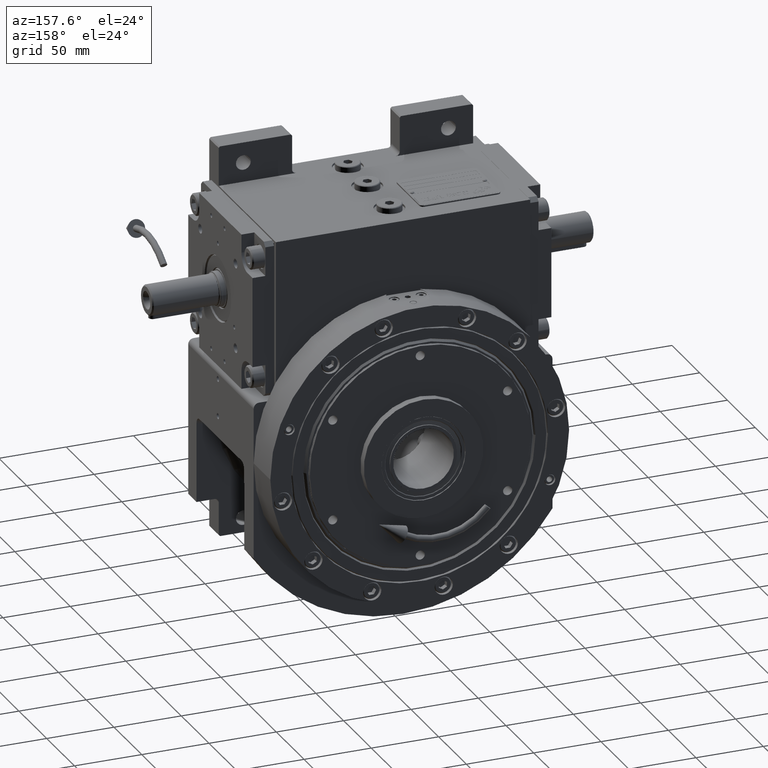
[diagram: clean part render]
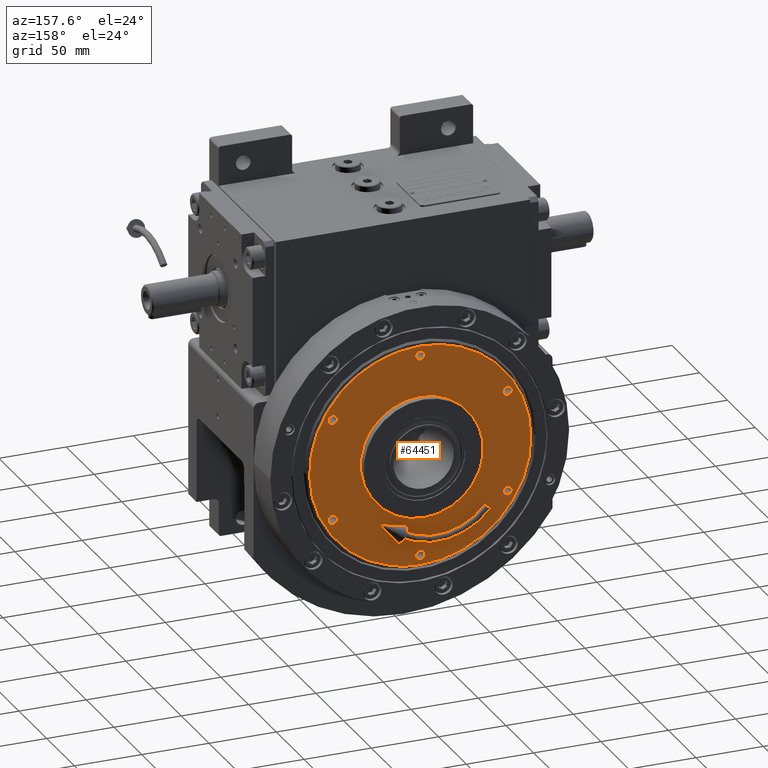
[diagram: same view with one face highlighted and labeled with its STEP entity id]
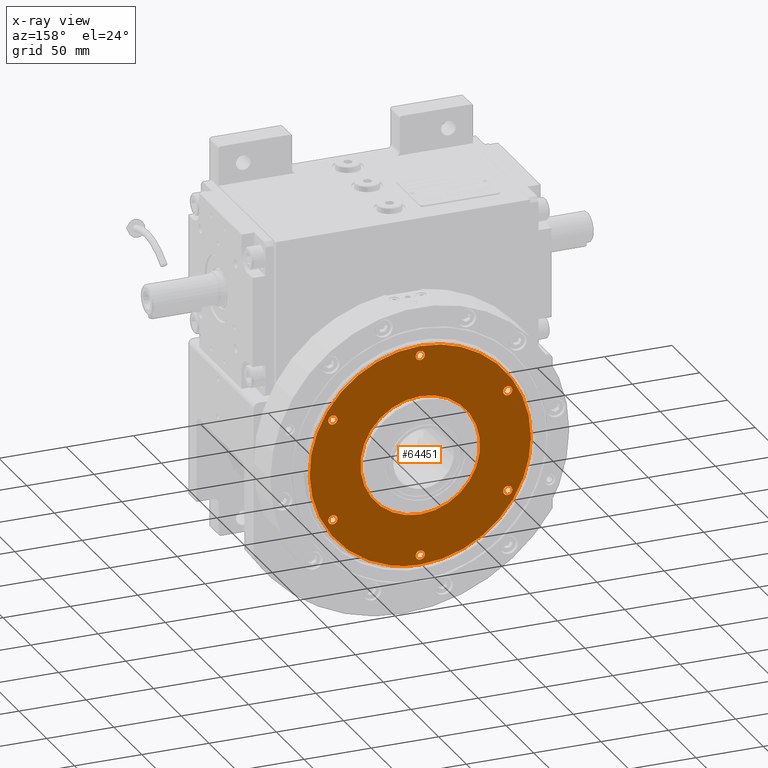
[diagram: x-ray of the same camera — body ghosted, the highlighted face saturated]
A machine part, auxiliary view. The second image highlights one B-rep face of the part: STEP entity #64451.
The next image is the same camera in x-ray: the body ghosted, the highlighted face saturated — about 0% of this face is hidden behind the body in this view.
In plain terms, the highlighted planar face has unit normal (-0, -1, 0).
Its self-contained STEP definition (entity closure, byte-faithful):
#206 = DIRECTION ( 'NONE',  ( 1.675637506513714923E-16, 1.000000000000000000, 1.391575833636289432E-15 ) ) ;
#396 = CIRCLE ( 'NONE', #46256, 3.400000000000000355 ) ;
#403 = CARTESIAN_POINT ( 'NONE',  ( -82.18603400874100373, 110.5000015448012078, -1.581321116836738903E-07 ) ) ;
#751 = CARTESIAN_POINT ( 'NONE',  ( -73.86467355760838416, 110.5000000000000284, 36.43724814399705281 ) ) ;
#859 = ORIENTED_EDGE ( 'NONE', *, *, #22621, .F. ) ;
#1396 = CARTESIAN_POINT ( 'NONE',  ( 79.57457908632083843, 110.4999999999999147, 20.63093614355476646 ) ) ;
#1589 = CARTESIAN_POINT ( 'NONE',  ( -80.85914935550094640, 110.5000000000001137, -14.71020086056635634 ) ) ;
#1900 = CARTESIAN_POINT ( 'NONE',  ( 71.59999999999999432, 110.5000000000000000, 1.022086504998418246E-13 ) ) ;
#1925 = CARTESIAN_POINT ( 'NONE',  ( -81.03742544091517175, 110.5000000000000711, -13.71909706410268015 ) ) ;
#2272 = DIRECTION ( 'NONE',  ( -4.718447854657029682E-16, 1.000000000000000000, -6.742972193678361957E-16 ) ) ;
#2445 = CARTESIAN_POINT ( 'NONE',  ( 80.33387830201935742, 110.4999999999999858, -17.35095847086815368 ) ) ;
#2494 = VERTEX_POINT ( 'NONE', #44020 ) ;
#2713 = AXIS2_PLACEMENT_3D ( 'NONE', #30598, #14823, #31601 ) ;
#2765 = CARTESIAN_POINT ( 'NONE',  ( 81.65593245021588586, 110.4999999999999147, 10.75709170780804591 ) ) ;
#2835 = AXIS2_PLACEMENT_3D ( 'NONE', #64018, #17167, #6525 ) ;
#3297 = VERTEX_POINT ( 'NONE', #57883 ) ;
#3607 = ORIENTED_EDGE ( 'NONE', *, *, #13050, .F. ) ;
#3730 = CARTESIAN_POINT ( 'NONE',  ( 37.49999999999976552, 110.5000000000004690, 64.95190528383290030 ) ) ;
#4087 = CARTESIAN_POINT ( 'NONE',  ( -75.00000000000000000, 110.5000000000000000, 2.232528398260600342E-13 ) ) ;
#5255 = EDGE_CURVE ( 'NONE', #3297, #50260, #44568, .T. ) ;
#5280 = ORIENTED_EDGE ( 'NONE', *, *, #39948, .F. ) ;
#5846 = CARTESIAN_POINT ( 'NONE',  ( -36.43677092628832526, 110.4999999999999432, 73.86494086435317286 ) ) ;
#5917 = CARTESIAN_POINT ( 'NONE',  ( -78.39999999999999147, 110.5000000000000000, 2.180706615231011380E-13 ) ) ;
#6190 = CARTESIAN_POINT ( 'NONE',  ( -81.41049721478047729, 110.5000000000000568, 11.40046640563026337 ) ) ;
#6514 = CARTESIAN_POINT ( 'NONE',  ( -77.86821339563778110, 110.5000000000000142, 26.42818210147186875 ) ) ;
#6525 = DIRECTION ( 'NONE',  ( 1.000000000000000000, 0.000000000000000000, -3.103063149571573393E-15 ) ) ;
#6851 = CARTESIAN_POINT ( 'NONE',  ( 80.11850087870730874, 110.4999999999999574, 18.33894396968175045 ) ) ;
#6937 = DIRECTION ( 'NONE',  ( -4.718447854657049403E-16, 1.000000000000000000, 1.415534356397163139E-15 ) ) ;
#7046 = CARTESIAN_POINT ( 'NONE',  ( -36.43753282681044681, 110.5000000000001563, -73.86470531561987229 ) ) ;
#7249 = CARTESIAN_POINT ( 'NONE',  ( 5.396965314102874167, 110.5000000000001279, -82.18599046470619385 ) ) ;
#7425 = CARTESIAN_POINT ( 'NONE',  ( -82.18603400874100373, 110.5000015448012078, -1.581321116836738903E-07 ) ) ;
#7727 = CARTESIAN_POINT ( 'NONE',  ( -82.18603400874100373, 110.5000015448012078, -1.581321116836738903E-07 ) ) ;
#7910 = CARTESIAN_POINT ( 'NONE',  ( 81.65587465362943931, 110.4999999999999716, -10.75668806138973821 ) ) ;
#8205 = EDGE_LOOP ( 'NONE', ( #5280, #24177 ) ) ;
#8263 = CARTESIAN_POINT ( 'NONE',  ( 54.29822300750018371, 110.5000000000000853, -61.93031885547884485 ) ) ;
#9641 = EDGE_CURVE ( 'NONE', #59673, #66961, #49555, .T. ) ;
#9743 = AXIS2_PLACEMENT_3D ( 'NONE', #45243, #50044, #50374 ) ;
#9756 = VERTEX_POINT ( 'NONE', #19935 ) ;
#10004 = EDGE_CURVE ( 'NONE', #19133, #23429, #48511, .T. ) ;
#10041 = CARTESIAN_POINT ( 'NONE',  ( 75.00000000000000000, 110.5000000000000000, 1.051233752824684617E-13 ) ) ;
#11002 = VERTEX_POINT ( 'NONE', #19016 ) ;
#11658 = CARTESIAN_POINT ( 'NONE',  ( -54.29909472632881773, 110.4999999999999289, 61.92944677904191053 ) ) ;
#11980 = CARTESIAN_POINT ( 'NONE',  ( 73.74790136345735903, 110.4999999999998863, 36.37523474268287060 ) ) ;
#12041 = AXIS2_PLACEMENT_3D ( 'NONE', #17342, #2272, #22843 ) ;
#12152 = ORIENTED_EDGE ( 'NONE', *, *, #17238, .F. ) ;
#12314 = CARTESIAN_POINT ( 'NONE',  ( -26.46591210633613045, 110.4999999999999147, 77.99484015378862978 ) ) ;
#12357 = CARTESIAN_POINT ( 'NONE',  ( 69.83423930135022317, 110.5000000000000426, -43.41667302301330267 ) ) ;
#12428 = VERTEX_POINT ( 'NONE', #47040 ) ;
#12858 = CARTESIAN_POINT ( 'NONE',  ( -10.74076764840350684, 110.5000000000001137, -81.65964476131441074 ) ) ;
#13043 = CARTESIAN_POINT ( 'NONE',  ( 21.32671897775462355, 110.5000000000000995, -79.55379426815653687 ) ) ;
#13050 = EDGE_CURVE ( 'NONE', #50260, #3297, #23521, .T. ) ;
#14581 = EDGE_CURVE ( 'NONE', #2494, #66902, #61903, .T. ) ;
#14823 = DIRECTION ( 'NONE',  ( -4.718447854657057292E-16, 1.000000000000000000, 3.505365932162158825E-15 ) ) ;
#15623 = DIRECTION ( 'NONE',  ( -1.000000000000000000, 4.081702296416015997E-15, 0.000000000000000000 ) ) ;
#15960 = DIRECTION ( 'NONE',  ( 1.000000000000000000, -1.248844797103662988E-15, -5.496118799065755261E-16 ) ) ;
#15979 = DIRECTION ( 'NONE',  ( 3.707818366064286826E-15, 1.000000000000000000, 3.505365932162154880E-15 ) ) ;
#16478 = CARTESIAN_POINT ( 'NONE',  ( -80.67297687466573564, 110.5000000000000568, 15.69867770626868442 ) ) ;
#16584 = B_SPLINE_CURVE_WITH_KNOTS ( 'NONE', 3,
 ( #23026, #34298, #7910, #23370, #29214, #2445, #59922, #38074, #48984, #43856, #17859, #18544, #65393, #12357, #44206, #17525, #8263, #60259, #50011, #32938, #22699, #13043, #33960, #7249, #28518 ),
 .UNSPECIFIED., .F., .F.,
 ( 4, 2, 2, 1, 1, 1, 2, 2, 2, 2, 2, 2, 2, 4 ),
 ( 0.000000000000000000, 0.06249999648971095445, 0.06640624627031788130, 0.07031249605092479427, 0.07812499561213860633, 0.09374999473456623045, 0.1249999929794214371, 0.1562499912242766298, 0.1874999894691318225, 0.2499999859588424300, 0.3124999824485529820, 0.3749999789382635340, 0.4374999754279740860, 0.4999999719176846380 ),
 .UNSPECIFIED. ) ;
#16832 = AXIS2_PLACEMENT_3D ( 'NONE', #43487, #28809, #48604 ) ;
#17167 = DIRECTION ( 'NONE',  ( -4.718447854657049403E-16, 1.000000000000000000, 1.415534356397163139E-15 ) ) ;
#17238 = EDGE_CURVE ( 'NONE', #66902, #2494, #54645, .T. ) ;
#17342 = CARTESIAN_POINT ( 'NONE',  ( -37.50000000000023448, 110.5000000000004690, 64.95190528383290030 ) ) ;
#17483 = CARTESIAN_POINT ( 'NONE',  ( -10.74154236511538230, 110.4999999999998863, 81.65956691445204285 ) ) ;
#17525 = CARTESIAN_POINT ( 'NONE',  ( 61.93063791654589778, 110.5000000000000853, -54.29769947772619076 ) ) ;
#17817 = CARTESIAN_POINT ( 'NONE',  ( 82.18222187922349065, 110.4999999999999716, 5.413844607824390032 ) ) ;
#17859 = CARTESIAN_POINT ( 'NONE',  ( 74.89780891093307957, 110.4999999999999858, -33.94318345663823067 ) ) ;
#18362 = CARTESIAN_POINT ( 'NONE',  ( -76.96293238175640283, 110.5000000000000995, -28.95791760141060323 ) ) ;
#18544 = CARTESIAN_POINT ( 'NONE',  ( 73.74813151264130795, 110.5000000000000142, -36.37479690083397088 ) ) ;
#19016 = CARTESIAN_POINT ( 'NONE',  ( 34.10000000000000142, 110.4999999999995310, -64.95190528383290030 ) ) ;
#19090 = CARTESIAN_POINT ( 'NONE',  ( -40.89999999999999858, 110.4999999999995310, -64.95190528383290030 ) ) ;
#19133 = VERTEX_POINT ( 'NONE', #25103 ) ;
#19267 = EDGE_CURVE ( 'NONE', #65372, #9756, #48778, .T. ) ;
#19890 = ORIENTED_EDGE ( 'NONE', *, *, #9641, .T. ) ;
#19935 = CARTESIAN_POINT ( 'NONE',  ( 82.18603400874251008, 110.5000015448018047, 1.581324351699644591E-07 ) ) ;
#20184 = CARTESIAN_POINT ( 'NONE',  ( 37.50000000000000000, 110.4999999999995310, -64.95190528383290030 ) ) ;
#20427 = FACE_OUTER_BOUND ( 'NONE', #45133, .T. ) ;
#21082 = FACE_BOUND ( 'NONE', #8205, .T. ) ;
#21116 = CARTESIAN_POINT ( 'NONE',  ( -37.50000000000023448, 110.5000000000004690, 64.95190528383290030 ) ) ;
#21641 = CARTESIAN_POINT ( 'NONE',  ( -61.92976105365574568, 110.4999999999999432, 54.29857669836285794 ) ) ;
#22467 = ORIENTED_EDGE ( 'NONE', *, *, #41734, .F. ) ;
#22621 = EDGE_CURVE ( 'NONE', #50293, #12428, #396, .T. ) ;
#22682 = VERTEX_POINT ( 'NONE', #5917 ) ;
#22699 = CARTESIAN_POINT ( 'NONE',  ( 26.46527515611209225, 110.5000000000001137, -77.99510436064849728 ) ) ;
#22843 = DIRECTION ( 'NONE',  ( 1.000000000000000000, 0.000000000000000000, 0.000000000000000000 ) ) ;
#23026 = CARTESIAN_POINT ( 'NONE',  ( 82.18603400874251008, 110.5000015448018047, 1.581324351699644591E-07 ) ) ;
#23234 = CARTESIAN_POINT ( 'NONE',  ( 44.45000000000000284, 110.5000000000000000, 1.284335846412389785E-13 ) ) ;
#23370 = CARTESIAN_POINT ( 'NONE',  ( 80.54158547785665689, 110.4999999999999858, -16.35931090249719588 ) ) ;
#23429 = VERTEX_POINT ( 'NONE', #19090 ) ;
#23521 = CIRCLE ( 'NONE', #2713, 3.400000000000000355 ) ;
#24177 = ORIENTED_EDGE ( 'NONE', *, *, #43948, .F. ) ;
#25103 = CARTESIAN_POINT ( 'NONE',  ( -34.10000000000000142, 110.4999999999995310, -64.95190528383290030 ) ) ;
#25318 = EDGE_CURVE ( 'NONE', #40013, #22682, #36715, .T. ) ;
#25375 = ORIENTED_EDGE ( 'NONE', *, *, #25318, .F. ) ;
#25863 = DIRECTION ( 'NONE',  ( -4.718447854657049403E-16, 1.000000000000000000, 1.415534356397163139E-15 ) ) ;
#26448 = CARTESIAN_POINT ( 'NONE',  ( 80.33384769217840926, 110.4999999999999289, 17.35112966435331572 ) ) ;
#26747 = AXIS2_PLACEMENT_3D ( 'NONE', #4087, #52271, #51277 ) ;
#26795 = CARTESIAN_POINT ( 'NONE',  ( -80.85911346599479543, 110.5000000000000711, 14.71011054370733362 ) ) ;
#26933 = PLANE ( 'NONE',  #51782 ) ;
#27133 = CARTESIAN_POINT ( 'NONE',  ( 36.43673274471090195, 110.4999999999998863, 73.86503631034798900 ) ) ;
#27453 = CARTESIAN_POINT ( 'NONE',  ( 76.96221393906925812, 110.4999999999999147, 28.95965176232091309 ) ) ;
#27637 = CARTESIAN_POINT ( 'NONE',  ( -80.67302273752039810, 110.5000000000001137, -15.69862675829484999 ) ) ;
#27748 = CARTESIAN_POINT ( 'NONE',  ( -1.048313195117545505E-10, 110.4999999999999858, -82.18603692326389876 ) ) ;
#27874 = DIRECTION ( 'NONE',  ( 1.000000000000000000, -9.366335978277473892E-16, -4.696858128919411138E-16 ) ) ;
#27883 = DIRECTION ( 'NONE',  ( 1.000000000000000000, 0.000000000000000000, 6.847565815024966582E-16 ) ) ;
#27993 = CARTESIAN_POINT ( 'NONE',  ( -54.29850716401772814, 110.5000000000001137, -61.92993699073135616 ) ) ;
#28067 = AXIS2_PLACEMENT_3D ( 'NONE', #21116, #15979, #15623 ) ;
#28172 = ORIENTED_EDGE ( 'NONE', *, *, #14581, .F. ) ;
#28329 = CARTESIAN_POINT ( 'NONE',  ( -80.08026981023142810, 110.5000000000000995, -18.67866566709005127 ) ) ;
#28518 = CARTESIAN_POINT ( 'NONE',  ( -1.048313195117545505E-10, 110.4999999999999858, -82.18603692326389876 ) ) ;
#28809 = DIRECTION ( 'NONE',  ( -4.718447854657029682E-16, 1.000000000000000000, -6.742972193678164742E-16 ) ) ;
#29103 = AXIS2_PLACEMENT_3D ( 'NONE', #38517, #38189, #53222 ) ;
#29214 = CARTESIAN_POINT ( 'NONE',  ( 80.47346700800814290, 110.4999999999999574, -16.69126919466632586 ) ) ;
#30434 = VERTEX_POINT ( 'NONE', #27748 ) ;
#30598 = CARTESIAN_POINT ( 'NONE',  ( 37.49999999999976552, 110.5000000000004690, 64.95190528383290030 ) ) ;
#30787 = CARTESIAN_POINT ( 'NONE',  ( -44.45000000000000284, 110.5000000000000000, 1.825849897817965684E-13 ) ) ;
#31601 = DIRECTION ( 'NONE',  ( 1.000000000000000000, 0.000000000000000000, 0.000000000000000000 ) ) ;
#32002 = EDGE_LOOP ( 'NONE', ( #859, #61689 ) ) ;
#32036 = FACE_BOUND ( 'NONE', #34291, .T. ) ;
#32201 = AXIS2_PLACEMENT_3D ( 'NONE', #20184, #41044, #62540 ) ;
#32249 = CARTESIAN_POINT ( 'NONE',  ( -5.396175763947936410, 110.4999999999999005, 82.18599094346413381 ) ) ;
#32575 = CARTESIAN_POINT ( 'NONE',  ( 71.21633143618711870, 110.4999999999999005, 41.11144999242252140 ) ) ;
#32899 = CARTESIAN_POINT ( 'NONE',  ( 78.32095192439938103, 110.4999999999999147, 25.16328900372736044 ) ) ;
#32938 = CARTESIAN_POINT ( 'NONE',  ( 36.43741795798399608, 110.5000000000001279, -73.86467248177748957 ) ) ;
#33240 = CARTESIAN_POINT ( 'NONE',  ( 65.33793898011033718, 110.4999999999998579, 50.14568632257594771 ) ) ;
#33602 = ORIENTED_EDGE ( 'NONE', *, *, #39881, .F. ) ;
#33960 = CARTESIAN_POINT ( 'NONE',  ( 10.74078281828396619, 110.5000000000001421, -81.65971843768942051 ) ) ;
#34110 = CARTESIAN_POINT ( 'NONE',  ( -41.17304319471158180, 110.5000000000001279, -71.33342587732602169 ) ) ;
#34291 = EDGE_LOOP ( 'NONE', ( #28172, #12152 ) ) ;
#34298 = CARTESIAN_POINT ( 'NONE',  ( 82.18217394222037342, 110.4999999999999858, -5.413439777049608992 ) ) ;
#34695 = CARTESIAN_POINT ( 'NONE',  ( 40.89999999999999858, 110.4999999999995310, -64.95190528383290030 ) ) ;
#34761 = EDGE_CURVE ( 'NONE', #30434, #65372, #62659, .T. ) ;
#35230 = DIRECTION ( 'NONE',  ( -4.718447854657029682E-16, 1.000000000000000000, -6.742972193678263349E-16 ) ) ;
#35468 = CIRCLE ( 'NONE', #32201, 3.400000000000000355 ) ;
#35578 = DIRECTION ( 'NONE',  ( -1.000000000000000000, 0.000000000000000000, 0.000000000000000000 ) ) ;
#36239 = CARTESIAN_POINT ( 'NONE',  ( -34.10000000000023590, 110.5000000000004690, 64.95190528383290030 ) ) ;
#36715 = CIRCLE ( 'NONE', #2835, 3.400000000000000355 ) ;
#36838 = FACE_BOUND ( 'NONE', #62518, .T. ) ;
#37034 = CARTESIAN_POINT ( 'NONE',  ( -65.33761603904906679, 110.4999999999999289, 50.14632643991285477 ) ) ;
#37085 = CIRCLE ( 'NONE', #9743, 3.400000000000000355 ) ;
#37160 = CARTESIAN_POINT ( 'NONE',  ( -3.183182310706833734E-14, 110.5000000000000000, 1.564165463818864609E-13 ) ) ;
#37697 = CARTESIAN_POINT ( 'NONE',  ( 21.32597268393185530, 110.4999999999998863, 79.55402177641896344 ) ) ;
#38074 = CARTESIAN_POINT ( 'NONE',  ( 79.57472203535756705, 110.5000000000000142, -20.63044246711247709 ) ) ;
#38189 = DIRECTION ( 'NONE',  ( 3.707818366064296292E-15, 1.000000000000000000, 3.505365932162139892E-15 ) ) ;
#38360 = CARTESIAN_POINT ( 'NONE',  ( 5.396190313849504427, 110.4999999999998721, 82.18606838660637948 ) ) ;
#38517 = CARTESIAN_POINT ( 'NONE',  ( -37.50000000000000000, 110.4999999999995310, -64.95190528383290030 ) ) ;
#38543 = CARTESIAN_POINT ( 'NONE',  ( -82.18412582237166930, 110.5000000000000995, -2.706922455996579213 ) ) ;
#38905 = CARTESIAN_POINT ( 'NONE',  ( -50.14754556814371966, 110.5000000000001137, -65.33666926840503208 ) ) ;
#39221 = CARTESIAN_POINT ( 'NONE',  ( -71.33364469616630288, 110.5000000000001421, -41.17277949763063560 ) ) ;
#39372 = CARTESIAN_POINT ( 'NONE',  ( 80.54161329299182626, 110.4999999999999005, 16.35928189945987654 ) ) ;
#39881 = EDGE_CURVE ( 'NONE', #22682, #40013, #55101, .T. ) ;
#39948 = EDGE_CURVE ( 'NONE', #11002, #51962, #35468, .T. ) ;
#40013 = VERTEX_POINT ( 'NONE', #53287 ) ;
#40771 = ORIENTED_EDGE ( 'NONE', *, *, #5255, .F. ) ;
#41044 = DIRECTION ( 'NONE',  ( -4.718447854657029682E-16, 1.000000000000000000, -6.742972193678314625E-16 ) ) ;
#41210 = DIRECTION ( 'NONE',  ( -1.000000000000000000, 0.000000000000000000, -7.500638182451421422E-16 ) ) ;
#41600 = DIRECTION ( 'NONE',  ( -6.555357385390620221E-16, -1.000000000000000000, -1.415534356397161758E-15 ) ) ;
#41734 = EDGE_CURVE ( 'NONE', #59673, #66961, #55428, .T. ) ;
#41932 = FACE_BOUND ( 'NONE', #47919, .T. ) ;
#42062 = ORIENTED_EDGE ( 'NONE', *, *, #19267, .T. ) ;
#42151 = CARTESIAN_POINT ( 'NONE',  ( -79.42723460417914794, 110.4999999999999858, 21.28768615169962075 ) ) ;
#42477 = CARTESIAN_POINT ( 'NONE',  ( -50.14684274527402152, 110.4999999999999574, 65.33704237330361764 ) ) ;
#42809 = CARTESIAN_POINT ( 'NONE',  ( 10.74154536275719529, 110.4999999999998721, 81.65949047945831296 ) ) ;
#43155 = CARTESIAN_POINT ( 'NONE',  ( -81.03738559922311424, 110.5000000000000568, 13.71894467123678396 ) ) ;
#43352 = CARTESIAN_POINT ( 'NONE',  ( -21.32673791258708462, 110.5000000000001421, -79.55386997823390516 ) ) ;
#43487 = CARTESIAN_POINT ( 'NONE',  ( -37.50000000000000000, 110.4999999999995310, -64.95190528383290030 ) ) ;
#43529 = EDGE_LOOP ( 'NONE', ( #33602, #25375 ) ) ;
#43856 = CARTESIAN_POINT ( 'NONE',  ( 76.96232867576267722, 110.5000000000000142, -28.95928036596258082 ) ) ;
#43948 = EDGE_CURVE ( 'NONE', #51962, #11002, #37085, .T. ) ;
#44020 = CARTESIAN_POINT ( 'NONE',  ( -40.90000000000023306, 110.5000000000004690, 64.95190528383290030 ) ) ;
#44206 = CARTESIAN_POINT ( 'NONE',  ( 65.33763228115988397, 110.5000000000000711, -50.14630245138518205 ) ) ;
#44372 = CARTESIAN_POINT ( 'NONE',  ( -73.86436510405076206, 110.5000000000001137, -36.43783581387050674 ) ) ;
#44568 = CIRCLE ( 'NONE', #56562, 3.400000000000000355 ) ;
#44690 = CARTESIAN_POINT ( 'NONE',  ( -65.33708734634379312, 110.5000000000001279, -50.14696052069763255 ) ) ;
#45133 = EDGE_LOOP ( 'NONE', ( #42062, #59319, #49530 ) ) ;
#45243 = CARTESIAN_POINT ( 'NONE',  ( 37.50000000000000000, 110.4999999999995310, -64.95190528383290030 ) ) ;
#45833 = EDGE_LOOP ( 'NONE', ( #22467, #19890 ) ) ;
#46256 = AXIS2_PLACEMENT_3D ( 'NONE', #10041, #25863, #41210 ) ;
#47040 = CARTESIAN_POINT ( 'NONE',  ( 78.39999999999999147, 110.5000000000000000, 9.745954043795032118E-14 ) ) ;
#47268 = CARTESIAN_POINT ( 'NONE',  ( 69.83408181518966273, 110.4999999999998863, 43.41695845024579370 ) ) ;
#47622 = CARTESIAN_POINT ( 'NONE',  ( -71.33312151958747904, 110.4999999999999574, 41.17344376063495304 ) ) ;
#47919 = EDGE_LOOP ( 'NONE', ( #61101, #59250 ) ) ;
#47936 = CARTESIAN_POINT ( 'NONE',  ( 41.17346744512529000, 110.4999999999998721, 71.33314274904859076 ) ) ;
#48266 = CARTESIAN_POINT ( 'NONE',  ( -81.98529366466031831, 110.5000000000000426, 6.740478288382846905 ) ) ;
#48511 = CIRCLE ( 'NONE', #16832, 3.400000000000000355 ) ;
#48604 = DIRECTION ( 'NONE',  ( 1.000000000000000000, 0.000000000000000000, 0.000000000000000000 ) ) ;
#48609 = CARTESIAN_POINT ( 'NONE',  ( -80.73618378714652977, 110.5000000000000284, 15.37033942092496908 ) ) ;
#48778 = B_SPLINE_CURVE_WITH_KNOTS ( 'NONE', 3,
 ( #403, #64328, #48266, #6190, #43155, #26795, #48609, #16478, #53721, #42151, #6514, #58854, #751, #47622, #37034, #21641, #11658, #42477, #52710, #5846, #12314, #58181, #17483, #32249, #38360, #42809, #37697, #53066, #27133, #47936, #59192, #63646, #58536, #33240, #47268, #32575, #11980, #53388, #27453, #32899, #1396, #6851, #26448, #65683, #39372, #2765, #17817, #66020 ),
 .UNSPECIFIED., .F., .F.,
 ( 4, 1, 1, 1, 2, 2, 2, 2, 2, 2, 2, 2, 2, 2, 2, 2, 2, 2, 2, 2, 2, 1, 1, 1, 2, 2, 4 ),
 ( 0.000000000000000000, 0.03125000000000000000, 0.04687500000000000000, 0.05468750000000000000, 0.05859374999999998612, 0.06249999999999997224, 0.09375000000000000000, 0.1250000000000000278, 0.1875000000000000000, 0.2499999999999999722, 0.3124999999999999445, 0.3749999999999998890, 0.4374999999999998890, 0.4999999999999998890, 0.5624999999999998890, 0.6249999999999998890, 0.6874999999999998890, 0.7499999999999998890, 0.8124999999999998890, 0.8437499999999998890, 0.8749999999999998890, 0.9062499999999998890, 0.9218749999999998890, 0.9296874999999998890, 0.9335937499999998890, 0.9374999999999998890, 1.000000000000000000 ),
 .UNSPECIFIED. ) ;
#48802 = CARTESIAN_POINT ( 'NONE',  ( -80.73621674438211926, 110.5000000000000995, -15.37038518178269264 ) ) ;
#48984 = CARTESIAN_POINT ( 'NONE',  ( 78.32115647600107877, 110.4999999999999574, -25.16263082416805474 ) ) ;
#49135 = CARTESIAN_POINT ( 'NONE',  ( -81.41054315470107383, 110.5000000000000853, -11.40073033654686796 ) ) ;
#49471 = CARTESIAN_POINT ( 'NONE',  ( -26.46516568415015769, 110.5000000000001279, -77.99506614383157910 ) ) ;
#49530 = ORIENTED_EDGE ( 'NONE', *, *, #34761, .T. ) ;
#49555 = CIRCLE ( 'NONE', #65945, 44.45000000000000284 ) ;
#50011 = CARTESIAN_POINT ( 'NONE',  ( 41.17286106389222056, 110.5000000000000853, -71.33364164011435093 ) ) ;
#50044 = DIRECTION ( 'NONE',  ( 3.707818366064296292E-15, 1.000000000000000000, 3.505365932162149358E-15 ) ) ;
#50260 = VERTEX_POINT ( 'NONE', #57675 ) ;
#50293 = VERTEX_POINT ( 'NONE', #1900 ) ;
#50374 = DIRECTION ( 'NONE',  ( 1.000000000000000000, -4.081702296416015997E-15, 0.000000000000000000 ) ) ;
#50493 = AXIS2_PLACEMENT_3D ( 'NONE', #58261, #6937, #27883 ) ;
#51277 = DIRECTION ( 'NONE',  ( -1.000000000000000000, 0.000000000000000000, -2.317437500068900789E-15 ) ) ;
#51782 = AXIS2_PLACEMENT_3D ( 'NONE', #37160, #41600, #57980 ) ;
#51962 = VERTEX_POINT ( 'NONE', #34695 ) ;
#52271 = DIRECTION ( 'NONE',  ( -4.718447854657049403E-16, 1.000000000000000000, 1.415534356397163139E-15 ) ) ;
#52525 = CARTESIAN_POINT ( 'NONE',  ( -3.437528039995291315E-14, 110.5000000000000000, 1.528638327030859347E-13 ) ) ;
#52710 = CARTESIAN_POINT ( 'NONE',  ( -41.17372798125234823, 110.4999999999999147, 71.33306199257278024 ) ) ;
#53066 = CARTESIAN_POINT ( 'NONE',  ( 26.46597584794663405, 110.4999999999998721, 77.99473097346027828 ) ) ;
#53222 = DIRECTION ( 'NONE',  ( -1.000000000000000000, 4.081702296416015997E-15, 0.000000000000000000 ) ) ;
#53287 = CARTESIAN_POINT ( 'NONE',  ( -71.59999999999999432, 110.5000000000000000, 2.133215514612094579E-13 ) ) ;
#53388 = CARTESIAN_POINT ( 'NONE',  ( 74.89794069821215317, 110.4999999999999005, 33.94279222128618301 ) ) ;
#53573 = CARTESIAN_POINT ( 'NONE',  ( -77.86803878220749198, 110.5000000000000995, -26.42874468702206769 ) ) ;
#53721 = CARTESIAN_POINT ( 'NONE',  ( -80.08037051196103562, 110.5000000000000000, 18.67829002333721533 ) ) ;
#53798 = CARTESIAN_POINT ( 'NONE',  ( -2.371713936355100647E-14, 110.5000000000000000, 1.493111190242854338E-13 ) ) ;
#53913 = CARTESIAN_POINT ( 'NONE',  ( -5.396965920549732232, 110.5000000000001137, -82.18606886526306710 ) ) ;
#54317 = EDGE_CURVE ( 'NONE', #23429, #19133, #63982, .T. ) ;
#54645 = CIRCLE ( 'NONE', #12041, 3.400000000000000355 ) ;
#54865 = CIRCLE ( 'NONE', #50493, 3.400000000000000355 ) ;
#55101 = CIRCLE ( 'NONE', #26747, 3.400000000000000355 ) ;
#55428 = CIRCLE ( 'NONE', #61984, 44.45000000000000284 ) ;
#56562 = AXIS2_PLACEMENT_3D ( 'NONE', #3730, #35230, #35578 ) ;
#57675 = CARTESIAN_POINT ( 'NONE',  ( 40.89999999999976410, 110.5000000000004690, 64.95190528383290030 ) ) ;
#57883 = CARTESIAN_POINT ( 'NONE',  ( 34.09999999999975984, 110.5000000000004690, 64.95190528383290030 ) ) ;
#57980 = DIRECTION ( 'NONE',  ( -1.000000000000000000, 6.555357385390609374E-16, 7.520026268359458754E-16 ) ) ;
#58181 = CARTESIAN_POINT ( 'NONE',  ( -21.32594694526337165, 110.4999999999999005, 79.55394827524166601 ) ) ;
#58261 = CARTESIAN_POINT ( 'NONE',  ( 75.00000000000000000, 110.5000000000000000, 9.513136806084206547E-14 ) ) ;
#58536 = CARTESIAN_POINT ( 'NONE',  ( 61.93011393209870619, 110.4999999999998579, 54.29833759267269500 ) ) ;
#58854 = CARTESIAN_POINT ( 'NONE',  ( -76.96276536764068510, 110.4999999999999858, 28.95822631422436544 ) ) ;
#59192 = CARTESIAN_POINT ( 'NONE',  ( 50.14712887847355915, 110.4999999999998863, 65.33694734459886888 ) ) ;
#59250 = ORIENTED_EDGE ( 'NONE', *, *, #10004, .F. ) ;
#59319 = ORIENTED_EDGE ( 'NONE', *, *, #63308, .T. ) ;
#59673 = VERTEX_POINT ( 'NONE', #23234 ) ;
#59922 = CARTESIAN_POINT ( 'NONE',  ( 80.11857142980537105, 110.5000000000000000, -18.33865731567752277 ) ) ;
#59956 = DIRECTION ( 'NONE',  ( 1.521405174071660091E-16, -1.000000000000000000, -1.439492879158034479E-15 ) ) ;
#60071 = CARTESIAN_POINT ( 'NONE',  ( -81.98533930688324745, 110.5000000000000568, -6.740832071539178294 ) ) ;
#60259 = CARTESIAN_POINT ( 'NONE',  ( 50.14771722367682116, 110.5000000000000711, -65.33645767331695708 ) ) ;
#60590 = EDGE_CURVE ( 'NONE', #12428, #50293, #54865, .T. ) ;
#61101 = ORIENTED_EDGE ( 'NONE', *, *, #54317, .F. ) ;
#61689 = ORIENTED_EDGE ( 'NONE', *, *, #60590, .F. ) ;
#61903 = CIRCLE ( 'NONE', #28067, 3.400000000000000355 ) ;
#61984 = AXIS2_PLACEMENT_3D ( 'NONE', #52525, #206, #15960 ) ;
#62123 = FACE_BOUND ( 'NONE', #32002, .T. ) ;
#62518 = EDGE_LOOP ( 'NONE', ( #40771, #3607 ) ) ;
#62540 = DIRECTION ( 'NONE',  ( -1.000000000000000000, 0.000000000000000000, 0.000000000000000000 ) ) ;
#62659 = B_SPLINE_CURVE_WITH_KNOTS ( 'NONE', 3,
 ( #64191, #53913, #12858, #43352, #49471, #7046, #34110, #38905, #27993, #64517, #44690, #39221, #44372, #18362, #53573, #64853, #28329, #27637, #48802, #1589, #1925, #49135, #60071, #38543, #7727 ),
 .UNSPECIFIED., .F., .F.,
 ( 4, 2, 2, 2, 2, 2, 2, 2, 2, 2, 1, 1, 1, 4 ),
 ( 0.4999999719176846380, 0.5624999754279741415, 0.6249999789382635340, 0.6874999824485530375, 0.7499999859588424300, 0.8124999894691320446, 0.8749999929794215481, 0.9062499947345663553, 0.9374999964897110516, 0.9414062467091041109, 0.9453124969284971701, 0.9531249973672832887, 0.9687499982448555258, 1.000000000000000000 ),
 .UNSPECIFIED. ) ;
#62790 = FACE_BOUND ( 'NONE', #45833, .T. ) ;
#63308 = EDGE_CURVE ( 'NONE', #9756, #30434, #16584, .T. ) ;
#63646 = CARTESIAN_POINT ( 'NONE',  ( 54.29876972623149811, 110.4999999999998721, 61.92967476324754017 ) ) ;
#63982 = CIRCLE ( 'NONE', #29103, 3.400000000000000355 ) ;
#64018 = CARTESIAN_POINT ( 'NONE',  ( -75.00000000000000000, 110.5000000000000000, 2.208103491718846898E-13 ) ) ;
#64191 = CARTESIAN_POINT ( 'NONE',  ( -1.048313195117545505E-10, 110.4999999999999858, -82.18603692326389876 ) ) ;
#64328 = CARTESIAN_POINT ( 'NONE',  ( -82.18410185386889566, 110.5000000000000284, 2.706720040397554428 ) ) ;
#64451 = ADVANCED_FACE ( 'NONE', ( #20427, #21082, #41932, #66907, #32036, #36838, #62123, #62790 ), #26933, .F. ) ;
#64517 = CARTESIAN_POINT ( 'NONE',  ( -61.93037135062299825, 110.5000000000001421, -54.29808050887286441 ) ) ;
#64853 = CARTESIAN_POINT ( 'NONE',  ( -79.42706700825722521, 110.5000000000001137, -21.28825086087030627 ) ) ;
#65372 = VERTEX_POINT ( 'NONE', #7425 ) ;
#65393 = CARTESIAN_POINT ( 'NONE',  ( 71.21656534630051283, 110.5000000000000000, -41.11101387479451574 ) ) ;
#65683 = CARTESIAN_POINT ( 'NONE',  ( 80.47346500646517597, 110.4999999999999432, 16.69135747300165207 ) ) ;
#65945 = AXIS2_PLACEMENT_3D ( 'NONE', #53798, #59956, #27874 ) ;
#66020 = CARTESIAN_POINT ( 'NONE',  ( 82.18603400874251008, 110.5000015448018047, 1.581324351699644591E-07 ) ) ;
#66902 = VERTEX_POINT ( 'NONE', #36239 ) ;
#66907 = FACE_BOUND ( 'NONE', #43529, .T. ) ;
#66961 = VERTEX_POINT ( 'NONE', #30787 ) ;